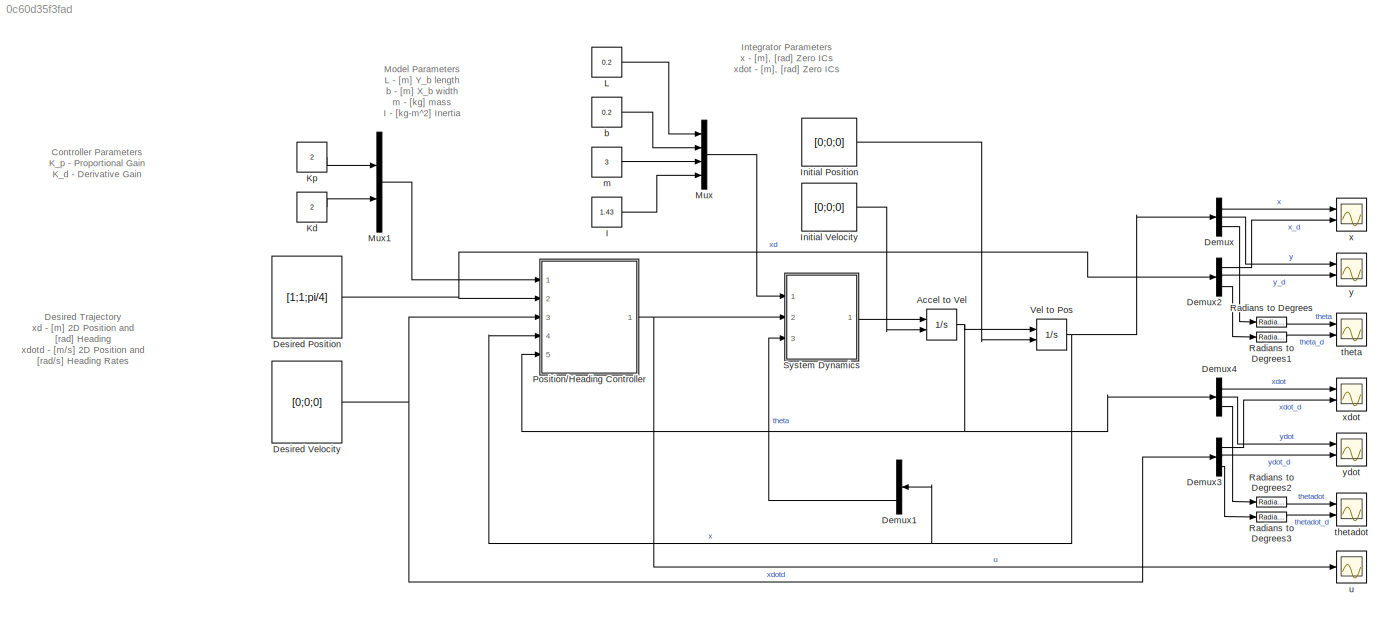
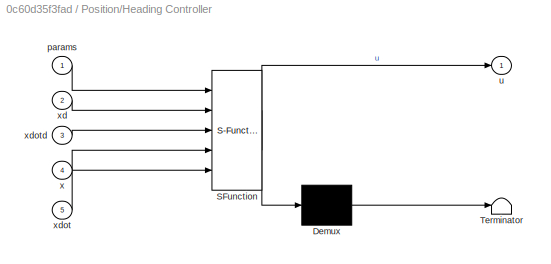
MODEL slx_0c60d35f3fad
KIND model
CONFIG AbsTol = auto
CONFIG EnableMultiTasking = off
CONFIG FixedStep = 1/100
CONFIG MaxStep = auto
CONFIG MinStep = auto
CONFIG RelTol = 1e-3
CONFIG SampleTimeConstraint = Unconstrained
CONFIG Solver = FixedStepAuto
CONFIG SolverName = FixedStepAuto
CONFIG StartTime = 0.0
CONFIG StopTime = 20
BLOCK [Integrator] Accel to Vel
  InitialCondition = [0;0;0]
  InitialConditionSource = external
  Ports = [2, 1]
BLOCK [Demux] Demux
  DisplayOption = bar
  Outputs = 3
  Ports = [1, 3]
BLOCK [Demux] Demux1
  DisplayOption = bar
  Outputs = 3
  Ports = [1, 3]
BLOCK [Demux] Demux2
  DisplayOption = bar
  Outputs = 3
  Ports = [1, 3]
BLOCK [Demux] Demux3
  DisplayOption = bar
  Outputs = 3
  Ports = [1, 3]
BLOCK [Demux] Demux4
  DisplayOption = bar
  Outputs = 3
  Ports = [1, 3]
BLOCK [Constant] Desired Position
  Value = [1;1;pi/4]
  VectorParams1D = off
BLOCK [Constant] Desired Velocity
  Value = [0;0;0]
  VectorParams1D = off
BLOCK [Constant] I
  Value = 1.43
BLOCK [Constant] Initial Position
  Value = [0;0;0]
  VectorParams1D = off
BLOCK [Constant] Initial Velocity
  Value = [0;0;0]
  VectorParams1D = off
BLOCK [Constant] Kd
  Value = 2
BLOCK [Constant] Kp
  Value = 2
BLOCK [Constant] L
  Value = 0.2
BLOCK [Mux] Mux
  DisplayOption = bar
  Ports = [4, 1]
BLOCK [Mux] Mux1
  DisplayOption = bar
  Inputs = 2
  Ports = [2, 1]
BLOCK [SubSystem] Position//Heading Controller
  ErrorFcn = Stateflow.Translate.translate
  PermitHierarchicalResolution = ExplicitOnly
  Ports = [5, 1]
  RequestExecContextInheritance = off
  SFBlockType = MATLAB Function
  TreatAsAtomicUnit = on
BLOCK [Demux] Position//Heading Controller/ Demux 
  Outputs = 1
  Ports = [1, 1]
BLOCK [S-Function] Position//Heading Controller/ SFunction 
  EnableBusSupport = on
  FunctionName = sf_sfun
  PortCounts = [5 2]
  Ports = [5, 2]
  SFcnIsStateOwnerBlock = off
  SFunctionDeploymentMode = off
  Tag = Stateflow S-Function controller 1
BLOCK [Terminator] Position//Heading Controller/ Terminator 
BLOCK [Inport] Position//Heading Controller/params
  IconDisplay = Port number
BLOCK [Outport] Position//Heading Controller/u
  IconDisplay = Port number
BLOCK [Inport] Position//Heading Controller/x
  IconDisplay = Port number
  Port = 4
BLOCK [Inport] Position//Heading Controller/xd
  IconDisplay = Port number
  Port = 2
BLOCK [Inport] Position//Heading Controller/xdot
  IconDisplay = Port number
  Port = 5
BLOCK [Inport] Position//Heading Controller/xdotd
  IconDisplay = Port number
  Port = 3
BLOCK [Reference] Radians to Degrees  REF=simulink_extras/Transformations/Radians
to Degrees
  Ports = [1, 1]
  SourceBlock = simulink_extras/Transformations/Radians\nto Degrees
  SourceProductBaseCode = SL
  SourceProductName = Simulink
  SourceType = RadiansToDegrees
BLOCK [Reference] Radians to Degrees1  REF=simulink_extras/Transformations/Radians
to Degrees
  Ports = [1, 1]
  SourceBlock = simulink_extras/Transformations/Radians\nto Degrees
  SourceProductBaseCode = SL
  SourceProductName = Simulink
  SourceType = RadiansToDegrees
BLOCK [Reference] Radians to Degrees2  REF=simulink_extras/Transformations/Radians
to Degrees
  Ports = [1, 1]
  SourceBlock = simulink_extras/Transformations/Radians\nto Degrees
  SourceProductBaseCode = SL
  SourceProductName = Simulink
  SourceType = RadiansToDegrees
BLOCK [Reference] Radians to Degrees3  REF=simulink_extras/Transformations/Radians
to Degrees
  Ports = [1, 1]
  SourceBlock = simulink_extras/Transformations/Radians\nto Degrees
  SourceProductBaseCode = SL
  SourceProductName = Simulink
  SourceType = RadiansToDegrees
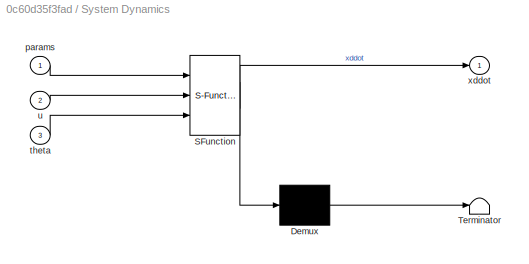
BLOCK [SubSystem] System Dynamics
  ErrorFcn = Stateflow.Translate.translate
  PermitHierarchicalResolution = ExplicitOnly
  Ports = [3, 1]
  RequestExecContextInheritance = off
  SFBlockType = MATLAB Function
  TreatAsAtomicUnit = on
BLOCK [Demux] System Dynamics/ Demux 
  Outputs = 1
  Ports = [1, 1]
BLOCK [S-Function] System Dynamics/ SFunction 
  EnableBusSupport = on
  FunctionName = sf_sfun
  PortCounts = [3 2]
  Ports = [3, 2]
  SFcnIsStateOwnerBlock = off
  SFunctionDeploymentMode = off
  Tag = Stateflow S-Function controller 3
BLOCK [Terminator] System Dynamics/ Terminator 
BLOCK [Inport] System Dynamics/params
  IconDisplay = Port number
BLOCK [Inport] System Dynamics/theta
  IconDisplay = Port number
  Port = 3
BLOCK [Inport] System Dynamics/u
  IconDisplay = Port number
  Port = 2
BLOCK [Outport] System Dynamics/xddot
  IconDisplay = Port number
BLOCK [Integrator] Vel to Pos
  InitialCondition = [0;0;0]
  InitialConditionSource = external
  Ports = [2, 1]
BLOCK [Constant] b
  Value = 0.2
BLOCK [Constant] m
  Value = 3
BLOCK [Scope] theta
  Floating = off
  NumInputPorts = 2
  Ports = [2]
  ScopeSpecificationString = Simulink.scopes.TimeScopeBlockCfg('CurrentConfiguration', extmgr.ConfigurationSet(extmgr.Configuration('Core','General UI',true),extmgr.Configuration('Core','Source UI',true),extmgr.Configuration('Sources','WiredSimulink',true,'DataLoggingVariableName','ScopeData2'),extmgr.Configuration('Visuals','Time Domain',true,'SerializedDisplays',{struct('MinYLimReal','-5.86808','MaxYLimReal','52.8127','YLab...<+1473ch>
BLOCK [Scope] thetadot
  Floating = off
  NumInputPorts = 2
  Ports = [2]
  ScopeSpecificationString = Simulink.scopes.TimeScopeBlockCfg('CurrentConfiguration', extmgr.ConfigurationSet(extmgr.Configuration('Core','General UI',true),extmgr.Configuration('Core','Source UI',true),extmgr.Configuration('Sources','WiredSimulink',true,'DataLoggingVariableName','ScopeData1'),extmgr.Configuration('Visuals','Time Domain',true,'SerializedDisplays',{struct('MinYLimReal','-5.0375','MaxYLimReal','32.79874','YLab...<+1474ch>
BLOCK [Scope] u
  Floating = off
  NumInputPorts = 1
  Ports = [1]
  ScopeSpecificationString = Simulink.scopes.TimeScopeBlockCfg('CurrentConfiguration', extmgr.ConfigurationSet(extmgr.Configuration('Core','General UI',true),extmgr.Configuration('Core','Source UI',true),extmgr.Configuration('Sources','WiredSimulink',true,'DataLoggingVariableName','ScopeData1'),extmgr.Configuration('Visuals','Time Domain',true,'SerializedDisplays',{struct('MinYLimReal','-0.71275','MaxYLimReal','2.25719','YLab...<+1476ch>
BLOCK [Scope] x
  Floating = off
  NumInputPorts = 2
  Ports = [2]
  ScopeSpecificationString = Simulink.scopes.TimeScopeBlockCfg('CurrentConfiguration', extmgr.ConfigurationSet(extmgr.Configuration('Core','General UI',true),extmgr.Configuration('Core','Source UI',true),extmgr.Configuration('Sources','WiredSimulink',true),extmgr.Configuration('Visuals','Time Domain',true,'SerializedDisplays',{struct('MinYLimReal','-0.1304','MaxYLimReal','1.17362','YLabelReal','','MinYLimMag','0.00000','MaxYL...<+1424ch>
BLOCK [Scope] xdot
  Floating = off
  NumInputPorts = 2
  Ports = [2]
  ScopeSpecificationString = Simulink.scopes.TimeScopeBlockCfg('CurrentConfiguration', extmgr.ConfigurationSet(extmgr.Configuration('Core','General UI',true),extmgr.Configuration('Core','Source UI',true),extmgr.Configuration('Sources','WiredSimulink',true,'DataLoggingVariableName','ScopeData2'),extmgr.Configuration('Visuals','Time Domain',true,'SerializedDisplays',{struct('MinYLimReal','-0.11194','MaxYLimReal','0.72886','YLab...<+1456ch>
BLOCK [Scope] y
  Floating = off
  NumInputPorts = 2
  Ports = [2]
  ScopeSpecificationString = Simulink.scopes.TimeScopeBlockCfg('CurrentConfiguration', extmgr.ConfigurationSet(extmgr.Configuration('Core','General UI',true),extmgr.Configuration('Core','Source UI',true),extmgr.Configuration('Sources','WiredSimulink',true,'DataLoggingVariableName','ScopeData1'),extmgr.Configuration('Visuals','Time Domain',true,'SerializedDisplays',{struct('MinYLimReal','-0.1304','MaxYLimReal','1.17362','YLabe...<+1468ch>
BLOCK [Scope] ydot
  Floating = off
  NumInputPorts = 2
  Ports = [2]
  ScopeSpecificationString = Simulink.scopes.TimeScopeBlockCfg('CurrentConfiguration', extmgr.ConfigurationSet(extmgr.Configuration('Core','General UI',true),extmgr.Configuration('Core','Source UI',true),extmgr.Configuration('Sources','WiredSimulink',true,'DataLoggingVariableName','ScopeData3'),extmgr.Configuration('Visuals','Time Domain',true,'SerializedDisplays',{struct('MinYLimReal','-0.11194','MaxYLimReal','0.72886','YLab...<+1459ch>
ANNOTATION (root): Controller Parameters K_p - Proportional Gain K_d - Derivative Gain
ANNOTATION (root): Desired Trajectory xd - [m] 2D Position and [rad] Heading xdotd - [m/s] 2D Position and [rad/s] Heading Rates
ANNOTATION (root): Integrator Parameters x - [m], [rad] Zero ICs xdot - [m], [rad] Zero ICs
ANNOTATION (root): Model Parameters L - [m] Y_b length b - [m] X_b width m - [kg] mass I - [kg-m^2] Inertia
NET Accel to Vel:1 -> Demux4:1, Position//Heading Controller:5, Vel to Pos:1
LINE Demux1:3 -> System Dynamics:3
LINE Demux2:1 -> x:2
LINE Demux2:2 -> y:2
LINE Demux2:3 -> Radians to Degrees1:1
LINE Demux3:1 -> xdot:2
LINE Demux3:2 -> ydot:2
LINE Demux3:3 -> Radians to Degrees3:1
LINE Demux4:1 -> xdot:1
LINE Demux4:2 -> ydot:1
LINE Demux4:3 -> Radians to Degrees2:1
LINE Demux:1 -> x:1
LINE Demux:2 -> y:1
LINE Demux:3 -> Radians to Degrees:1
NET Desired Position:1 -> Demux2:1, Position//Heading Controller:2
NET Desired Velocity:1 -> Demux3:1, Position//Heading Controller:3
LINE I:1 -> Mux:4
LINE Initial Position:1 -> Vel to Pos:2
LINE Initial Velocity:1 -> Accel to Vel:2
LINE Kd:1 -> Mux1:2
LINE Kp:1 -> Mux1:1
LINE L:1 -> Mux:1
LINE Mux1:1 -> Position//Heading Controller:1
LINE Mux:1 -> System Dynamics:1
NET Position//Heading Controller:1 -> System Dynamics:2, u:1
LINE Radians to Degrees1:1 -> theta:2
LINE Radians to Degrees2:1 -> thetadot:1
LINE Radians to Degrees3:1 -> thetadot:2
LINE Radians to Degrees:1 -> theta:1
LINE System Dynamics:1 -> Accel to Vel:1
NET Vel to Pos:1 -> Demux1:1, Demux:1, Position//Heading Controller:4
LINE b:1 -> Mux:2
LINE m:1 -> Mux:3
note: NET lines group one-source signal fan-out (src -> all destinations, sorted); 1:1 wires keep LINE
CHART Position//Heading
Controller states=1 transitions=1
  STATE_LABEL 'eML_blk_kernel()'
  STATE_LABEL 'SCRIPT:\nfunction u = controller(params,xd,xdotd,x,xdot)\n\nKp = params(1)*eye(3);\nKd = params(2)*eye(3);\n\nu = zeros(3,1);\n\nu = (-Kd * (xdot - xdotd)) + (-Kp * (x - xd));'
CHART System
Dynamics states=1 transitions=1
  STATE_LABEL 'eML_blk_kernel()'
  STATE_LABEL "SCRIPT:\nfunction xddot  = plant(params, u, theta)\n    L = params(1);\n    b = params(2); \n    m = params(3);\n    I = params(4);\n    \n    H = [\n        -1 -1 0 0 1 1 0 0; \n        0 0 -1 -1 0 0 1 1;\n        -L L -b b -L L -b b];\n\n    T = [\n        cos(theta)/m, sin(theta)/m, 0;\n        -sin(theta)/m, cos(theta)/m, 0;\n        0, 0, 1/(2*I)];\n    \n    F = H'*inv(H*H')*inv(T)*u;\n    \n    xddot = T*H*F;...<+4ch>"
